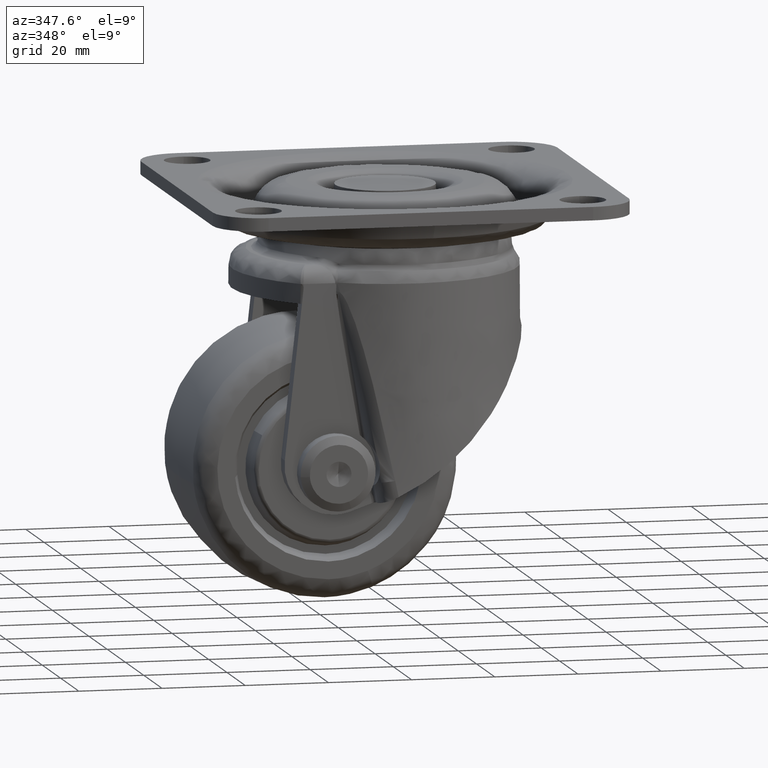
[diagram: clean part render]
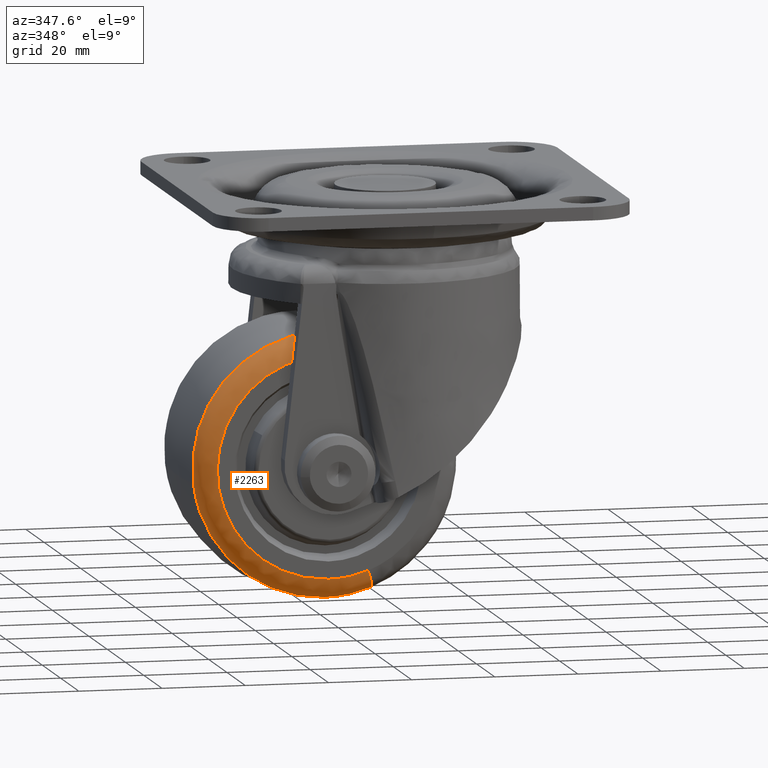
[diagram: same view with one face highlighted and labeled with its STEP entity id]
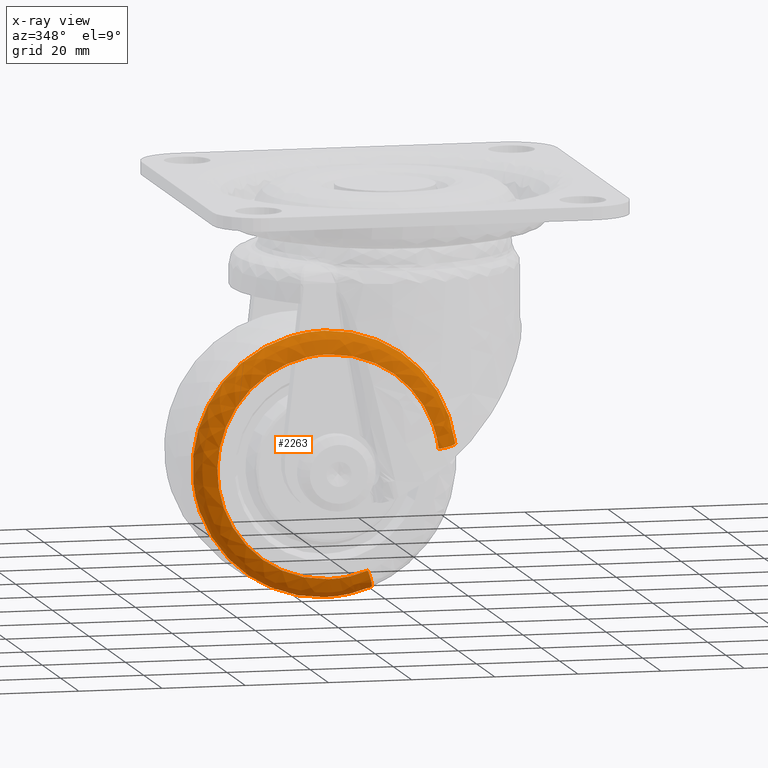
[diagram: x-ray of the same camera — body ghosted, the highlighted face saturated]
A machine part, auxiliary view. The second image highlights one B-rep face of the part: STEP entity #2263.
The next image is the same camera in x-ray: the body ghosted, the highlighted face saturated — about 0% of this face is hidden behind the body in this view.
In plain terms, the highlighted face is a freeform B-spline surface patch.
Its self-contained STEP definition (entity closure, byte-faithful):
#2087=CARTESIAN_POINT('',(-8.654591171654600,-19.989067962804327,-89.181559532395354));
#2088=CARTESIAN_POINT('',(-11.584284856302650,-19.989067962804320,-90.290856746330789));
#2089=CARTESIAN_POINT('',(-14.692256628481124,-19.989067962804324,-90.683484888538132));
#2090=CARTESIAN_POINT('',(-40.875741517019257,-19.989067962804317,-93.991228260060197));
#2091=CARTESIAN_POINT('',(-44.183484888541322,-19.989067962804324,-67.807743371522079));
#2092=CARTESIAN_POINT('',(-47.491228260063380,-19.989067962804317,-41.624258482983947));
#2093=CARTESIAN_POINT('',(-21.307743371525280,-19.989067962804324,-38.316515111461889));
#2094=CARTESIAN_POINT('',(4.875741517012851,-19.989067962804317,-35.008771739939803));
#2095=CARTESIAN_POINT('',(8.183484888534929,-19.989067962804324,-61.192256628477935));
#2096=CARTESIAN_POINT('',(-6.837044787602114,-20.329042487680741,-93.981764649672030));
#2097=CARTESIAN_POINT('',(-10.336521374284455,-20.329042487680741,-95.306804072114303));
#2098=CARTESIAN_POINT('',(-14.048948549112074,-20.329042487680734,-95.775792689636731));
#2099=CARTESIAN_POINT('',(-45.324741238748793,-20.329042487680734,-99.726844140527845));
#2100=CARTESIAN_POINT('',(-49.275792689639950,-20.329042487680734,-68.451051450891143));
#2101=CARTESIAN_POINT('',(-53.226844140531050,-20.329042487680734,-37.175258761254398));
#2102=CARTESIAN_POINT('',(-21.951051450894330,-20.329042487680734,-33.224207310363276));
#2103=CARTESIAN_POINT('',(9.324741238742405,-20.329042487680734,-29.273155859472144));
#2104=CARTESIAN_POINT('',(13.275792689633537,-20.329042487680734,-60.548948549108864));
#2105=CARTESIAN_POINT('',(-6.768308290319992,-15.188678021905860,-94.163300201607512));
#2106=CARTESIAN_POINT('',(-10.289333092355031,-15.188678021905858,-95.496498625579989));
#2107=CARTESIAN_POINT('',(-14.024619737238499,-15.188678021905860,-95.968375065746173));
#2108=CARTESIAN_POINT('',(-45.492994802984668,-15.188678021905861,-99.943755328510875));
#2109=CARTESIAN_POINT('',(-49.468375065749377,-15.188678021905860,-68.475380262764716));
#2110=CARTESIAN_POINT('',(-53.443755328514079,-15.188678021905861,-37.007005197018529));
#2111=CARTESIAN_POINT('',(-21.975380262767906,-15.188678021905860,-33.031624934253834));
#2112=CARTESIAN_POINT('',(9.492994802978268,-15.188678021905861,-29.056244671489129));
#2113=CARTESIAN_POINT('',(13.468375065742970,-15.188678021905860,-60.524619737235284));
#2121=(BOUNDED_SURFACE()B_SPLINE_SURFACE(2,2,((#2087,#2096,#2105),(#2088,#2097,#2106),(#2089,#2098,#2107),(#2090,#2099,#2108),(#2091,#2100,#2109),(#2092,#2101,#2110),(#2093,#2102,#2111),(#2094,#2103,#2112),(#2095,#2104,#2113)),.UNSPECIFIED.,.F.,.F.,.U.)B_SPLINE_SURFACE_WITH_KNOTS((3,2,2,2,3),(3,3),(0.0,8.408465010462527,60.961371325853271,113.514277641244010,166.067183956634810),(0.0,8.451087746439294),.UNSPECIFIED.)GEOMETRIC_REPRESENTATION_ITEM()RATIONAL_B_SPLINE_SURFACE(((0.840444889049596,0.586928797470002,0.843723284361154),(0.869515916472650,0.607230691608387,0.872907711629038),(0.912267427388907,0.637086418282481,0.915825987022985),(0.645070484162303,0.450488126569391,0.647586765810816),(0.912267427388907,0.637086418282481,0.915825987022985),(0.645070484162303,0.450488126569391,0.647586765810816),(0.912267427388907,0.637086418282481,0.915825987022985),(0.645070484162303,0.450488126569391,0.647586765810816),(0.912267427388907,0.637086418282481,0.915825987022985)))REPRESENTATION_ITEM('')SURFACE());
#2122=CARTESIAN_POINT('',(-6.776546357793379,-15.517245121579940,-94.141543170232893));
#2123=VERTEX_POINT('',#2122);
#2124=CARTESIAN_POINT('',(-18.000000000003201,-15.517245186518950,-96.195221031718916));
#2125=VERTEX_POINT('',#2124);
#2126=CARTESIAN_POINT('',(-6.776546357793379,-15.517245121579935,-94.141543170232893));
#2127=CARTESIAN_POINT('',(-12.200381255022867,-15.517245186518947,-96.195221031718930));
#2128=CARTESIAN_POINT('',(-18.000000000003201,-15.517245186518950,-96.195221031718916));
#2136=(BOUNDED_CURVE()B_SPLINE_CURVE(2,(#2126,#2127,#2128),.UNSPECIFIED.,.F.,.U.)B_SPLINE_CURVE_WITH_KNOTS((3,3),(0.439864364277765,0.500000000000000),.UNSPECIFIED.)CURVE()GEOMETRIC_REPRESENTATION_ITEM()RATIONAL_B_SPLINE_CURVE((0.892987462786314,0.929546720351686,1.0))REPRESENTATION_ITEM(''));
#2137=EDGE_CURVE('',#2123,#2125,#2136,.T.);
#2138=ORIENTED_EDGE('',*,*,#2137,.F.);
#2139=CARTESIAN_POINT('',(-8.537575646956846,-19.999999999999449,-89.490601725301744));
#2140=VERTEX_POINT('',#2139);
#2141=CARTESIAN_POINT('',(-8.537575646956848,-19.999999999999449,-89.490601725301744));
#2142=CARTESIAN_POINT('',(-6.941644099641310,-20.000001570478428,-93.705514119110774));
#2143=CARTESIAN_POINT('',(-6.776546357793379,-15.517245121579936,-94.141543170232879));
#2151=(BOUNDED_CURVE()B_SPLINE_CURVE(2,(#2141,#2142,#2143),.UNSPECIFIED.,.F.,.U.)B_SPLINE_CURVE_WITH_KNOTS((3,3),(-1.709106103177331,-0.280800767942730),.UNSPECIFIED.)CURVE()GEOMETRIC_REPRESENTATION_ITEM()RATIONAL_B_SPLINE_CURVE((0.818471199415257,0.609051286874873,0.821451997574834))REPRESENTATION_ITEM(''));
#2152=EDGE_CURVE('',#2140,#2123,#2151,.T.);
#2153=ORIENTED_EDGE('',*,*,#2152,.F.);
#2154=CARTESIAN_POINT('',(-18.000000000003201,-19.999999999999449,-91.222044254670891));
#2155=VERTEX_POINT('',#2154);
#2156=CARTESIAN_POINT('',(-8.537575646956846,-19.999999999999442,-89.490601725301744));
#2157=CARTESIAN_POINT('',(-13.110377403429526,-19.999999999999449,-91.222044254670891));
#2158=CARTESIAN_POINT('',(-18.000000000003201,-19.999999999999449,-91.222044254670891));
#2166=(BOUNDED_CURVE()B_SPLINE_CURVE(2,(#2156,#2157,#2158),.UNSPECIFIED.,.F.,.U.)B_SPLINE_CURVE_WITH_KNOTS((3,3),(0.439864366382771,0.500000000000000),.UNSPECIFIED.)CURVE()GEOMETRIC_REPRESENTATION_ITEM()RATIONAL_B_SPLINE_CURVE((0.892987465345775,0.929546722817853,1.0))REPRESENTATION_ITEM(''));
#2167=EDGE_CURVE('',#2140,#2155,#2166,.T.);
#2168=ORIENTED_EDGE('',*,*,#2167,.T.);
#2169=CARTESIAN_POINT('',(-18.000000000003201,-19.999999999999449,-37.777955745329109));
#2170=VERTEX_POINT('',#2169);
#2171=CARTESIAN_POINT('',(-18.000000000003201,-19.999999999999449,-91.222044254670891));
#2172=CARTESIAN_POINT('',(-44.722044254674088,-19.999999999999449,-91.222044254670877));
#2173=CARTESIAN_POINT('',(-44.722044254674103,-19.999999999999449,-64.500000000000000));
#2174=CARTESIAN_POINT('',(-44.722044254674088,-19.999999999999449,-37.777955745329102));
#2175=CARTESIAN_POINT('',(-18.000000000003201,-19.999999999999449,-37.777955745329109));
#2183=(BOUNDED_CURVE()B_SPLINE_CURVE(2,(#2171,#2172,#2173,#2174,#2175),.UNSPECIFIED.,.F.,.U.)B_SPLINE_CURVE_WITH_KNOTS((3,2,3),(0.500000000000000,0.750000000000000,1.0),.UNSPECIFIED.)CURVE()GEOMETRIC_REPRESENTATION_ITEM()RATIONAL_B_SPLINE_CURVE((1.0,0.707106781186547,1.0,0.707106781186547,1.0))REPRESENTATION_ITEM(''));
#2184=EDGE_CURVE('',#2155,#2170,#2183,.T.);
#2185=ORIENTED_EDGE('',*,*,#2184,.T.);
#2186=CARTESIAN_POINT('',(8.511332960296567,-19.999999999999449,-61.150839784804951));
#2187=VERTEX_POINT('',#2186);
#2188=CARTESIAN_POINT('',(-18.000000000003201,-19.999999999999449,-37.777955745329109));
#2189=CARTESIAN_POINT('',(5.558651039909932,-19.999999999999442,-37.777955745329116));
#2190=CARTESIAN_POINT('',(8.511332960296569,-19.999999999999449,-61.150839784804951));
#2198=(BOUNDED_CURVE()B_SPLINE_CURVE(2,(#2188,#2189,#2190),.UNSPECIFIED.,.F.,.U.)B_SPLINE_CURVE_WITH_KNOTS((3,3),(0.0,0.228321256474754),.UNSPECIFIED.)CURVE()GEOMETRIC_REPRESENTATION_ITEM()RATIONAL_B_SPLINE_CURVE((1.0,0.732505009070309,0.953608357578779))REPRESENTATION_ITEM(''));
#2199=EDGE_CURVE('',#2170,#2187,#2198,.T.);
#2200=ORIENTED_EDGE('',*,*,#2199,.T.);
#2201=CARTESIAN_POINT('',(13.445293484557840,-15.517245076590189,-60.527535619023617));
#2202=VERTEX_POINT('',#2201);
#2203=CARTESIAN_POINT('',(8.511332960296567,-19.999999999999449,-61.150839784804958));
#2204=CARTESIAN_POINT('',(12.982731713054894,-20.000001562074356,-60.585970760126862));
#2205=CARTESIAN_POINT('',(13.445293484557844,-15.517245076590191,-60.527535619023631));
#2213=(BOUNDED_CURVE()B_SPLINE_CURVE(2,(#2203,#2204,#2205),.UNSPECIFIED.,.F.,.U.)B_SPLINE_CURVE_WITH_KNOTS((3,3),(-1.709106101191981,-0.280800771496927),.UNSPECIFIED.)CURVE()GEOMETRIC_REPRESENTATION_ITEM()RATIONAL_B_SPLINE_CURVE((0.888415914808777,0.661099446982529,0.891651444789159))REPRESENTATION_ITEM(''));
#2214=EDGE_CURVE('',#2187,#2202,#2213,.T.);
#2215=ORIENTED_EDGE('',*,*,#2214,.T.);
#2216=CARTESIAN_POINT('',(-18.000000000003201,-15.517244985638600,-32.804780202028503));
#2217=VERTEX_POINT('',#2216);
#2218=CARTESIAN_POINT('',(-18.000000000003201,-15.517244985638600,-32.804780202028503));
#2219=CARTESIAN_POINT('',(9.943094587212308,-15.517244985638600,-32.804780202028503));
#2220=CARTESIAN_POINT('',(13.445293484557844,-15.517245076590186,-60.527535619023617));
#2228=(BOUNDED_CURVE()B_SPLINE_CURVE(2,(#2218,#2219,#2220),.UNSPECIFIED.,.F.,.U.)B_SPLINE_CURVE_WITH_KNOTS((3,3),(0.0,0.228321253634278),.UNSPECIFIED.)CURVE()GEOMETRIC_REPRESENTATION_ITEM()RATIONAL_B_SPLINE_CURVE((1.0,0.732505012398135,0.953608352077417))REPRESENTATION_ITEM(''));
#2229=EDGE_CURVE('',#2217,#2202,#2228,.T.);
#2230=ORIENTED_EDGE('',*,*,#2229,.F.);
#2231=CARTESIAN_POINT('',(-49.483237567557090,-15.517260257960620,-68.159613186913731));
#2232=VERTEX_POINT('',#2231);
#2233=CARTESIAN_POINT('',(-49.483237567557090,-15.517260257960617,-68.159613186913731));
#2234=CARTESIAN_POINT('',(-49.695220689045527,-15.517259864073454,-66.335946207376224));
#2235=CARTESIAN_POINT('',(-49.695220662554647,-15.517259421748710,-64.500000100498823));
#2236=CARTESIAN_POINT('',(-49.695220205224281,-15.517251785587705,-32.804780249367212));
#2237=CARTESIAN_POINT('',(-18.000000000003201,-15.517244985638600,-32.804780202028503));
#2245=(BOUNDED_CURVE()B_SPLINE_CURVE(2,(#2233,#2234,#2235,#2236,#2237),.UNSPECIFIED.,.F.,.U.)B_SPLINE_CURVE_WITH_KNOTS((3,2,3),(0.730000274267277,0.750000000000000,1.0),.UNSPECIFIED.)CURVE()GEOMETRIC_REPRESENTATION_ITEM()RATIONAL_B_SPLINE_CURVE((0.956886658015856,0.976568863819026,1.0,0.707106781186548,1.0))REPRESENTATION_ITEM(''));
#2246=EDGE_CURVE('',#2232,#2217,#2245,.T.);
#2247=ORIENTED_EDGE('',*,*,#2246,.F.);
#2248=CARTESIAN_POINT('',(-18.000000000003201,-15.517245186518950,-96.195221031718916));
#2249=CARTESIAN_POINT('',(-46.224376714249487,-15.517252722239778,-96.195220468005331));
#2250=CARTESIAN_POINT('',(-49.483237567557090,-15.517260257960617,-68.159613186913731));
#2258=(BOUNDED_CURVE()B_SPLINE_CURVE(2,(#2248,#2249,#2250),.UNSPECIFIED.,.F.,.U.)B_SPLINE_CURVE_WITH_KNOTS((3,3),(0.500000000000000,0.730000274267277),.UNSPECIFIED.)CURVE()GEOMETRIC_REPRESENTATION_ITEM()RATIONAL_B_SPLINE_CURVE((1.0,0.730537917367522,0.956886658015856))REPRESENTATION_ITEM(''));
#2259=EDGE_CURVE('',#2125,#2232,#2258,.T.);
#2260=ORIENTED_EDGE('',*,*,#2259,.F.);
#2261=EDGE_LOOP('',(#2138,#2153,#2168,#2185,#2200,#2215,#2230,#2247,#2260));
#2262=FACE_OUTER_BOUND('',#2261,.T.);
#2263=ADVANCED_FACE('',(#2262),#2121,.T.);